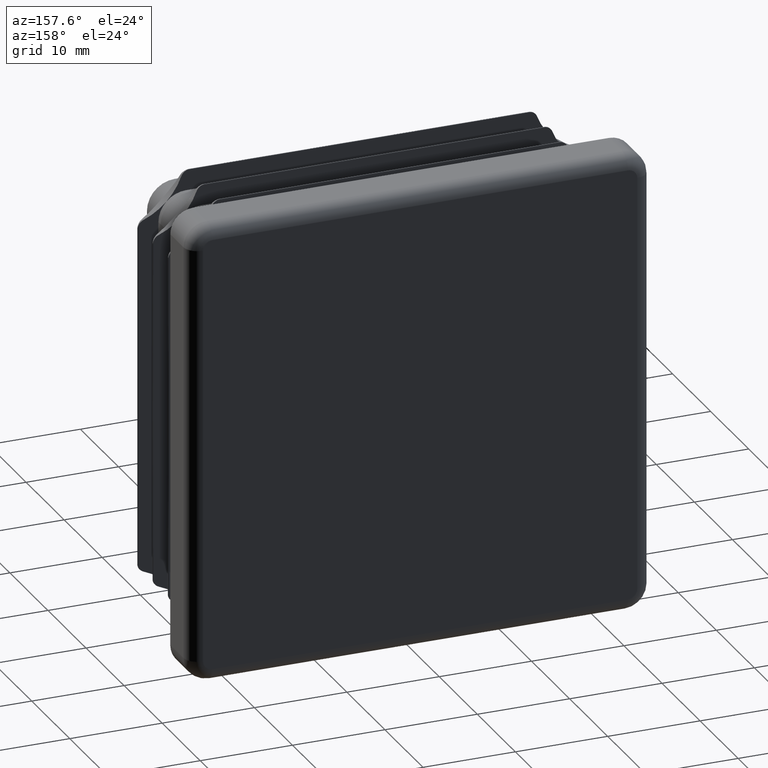
[diagram: clean part render]
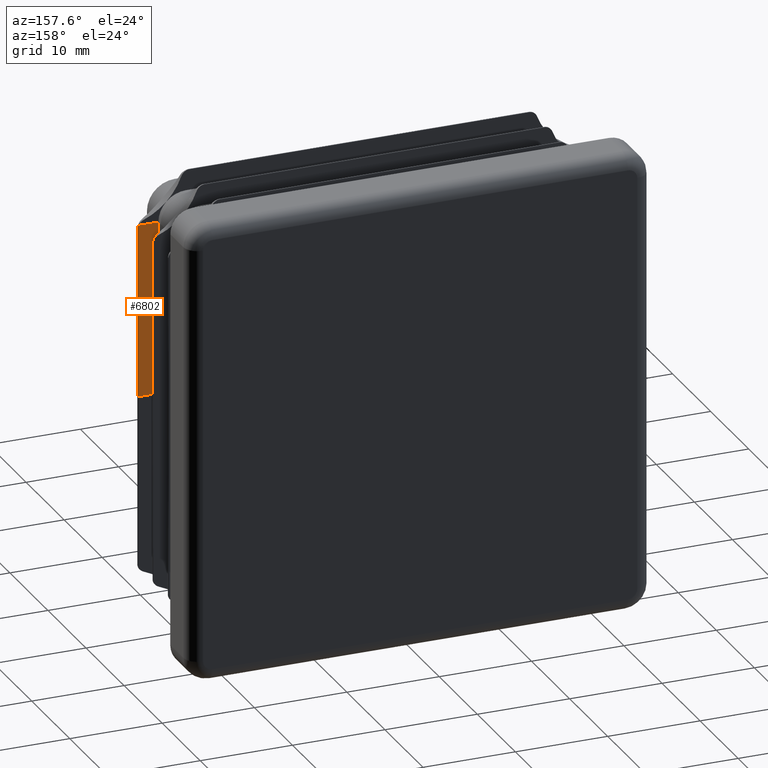
[diagram: same view with one face highlighted and labeled with its STEP entity id]
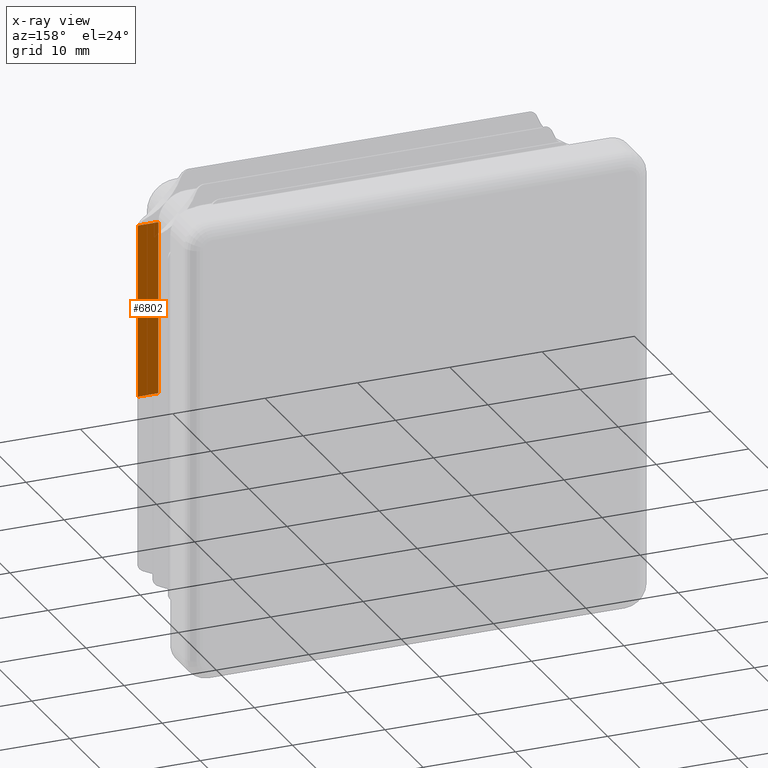
[diagram: x-ray of the same camera — body ghosted, the highlighted face saturated]
A machine part, auxiliary view. The second image highlights one B-rep face of the part: STEP entity #6802.
The next image is the same camera in x-ray: the body ghosted, the highlighted face saturated — about 0% of this face is hidden behind the body in this view.
In plain terms, the highlighted planar face has unit normal (0, -1, -0).
Its self-contained STEP definition (entity closure, byte-faithful):
#297 = DIRECTION ( 'NONE',  ( -1.000000000000000000, 0.000000000000000000, 0.000000000000000000 ) ) ;
#532 = CARTESIAN_POINT ( 'NONE',  ( 23.95000000000008811, -11.00000000000000178, 18.64722551352497248 ) ) ;
#560 = VERTEX_POINT ( 'NONE', #12474 ) ;
#561 = ORIENTED_EDGE ( 'NONE', *, *, #9278, .T. ) ;
#607 = ORIENTED_EDGE ( 'NONE', *, *, #12293, .F. ) ;
#1842 = CARTESIAN_POINT ( 'NONE',  ( 23.95000000000008811, -11.00000000000000178, 18.74999999999999645 ) ) ;
#1956 = VECTOR ( 'NONE', #19129, 1000.000000000000000 ) ;
#1964 = VERTEX_POINT ( 'NONE', #15483 ) ;
#2296 = CARTESIAN_POINT ( 'NONE',  ( 21.75000000000000000, -11.00000000000000178, 18.74999999999999645 ) ) ;
#3265 = DIRECTION ( 'NONE',  ( 0.000000000000000000, 0.000000000000000000, -1.000000000000000000 ) ) ;
#3284 = EDGE_CURVE ( 'NONE', #4786, #18707, #4988, .T. ) ;
#3634 = CARTESIAN_POINT ( 'NONE',  ( 23.00000000000009592, -11.00000000000000178, 18.33497561360503525 ) ) ;
#4589 = AXIS2_PLACEMENT_3D ( 'NONE', #4728, #18368, #6535 ) ;
#4728 = CARTESIAN_POINT ( 'NONE',  ( 21.75000000000008171, -11.00000000000000178, 18.74999999999999645 ) ) ;
#4786 = VERTEX_POINT ( 'NONE', #19013 ) ;
#4988 = LINE ( 'NONE', #8445, #20560 ) ;
#5528 = VECTOR ( 'NONE', #3265, 1000.000000000000000 ) ;
#6429 = LINE ( 'NONE', #17229, #1956 ) ;
#6535 = DIRECTION ( 'NONE',  ( 0.000000000000000000, 0.000000000000000000, -1.000000000000000000 ) ) ;
#6802 = ADVANCED_FACE ( 'NONE', ( #12988 ), #21258, .F. ) ;
#7677 = CIRCLE ( 'NONE', #15643, 0.9999999999999974465 ) ;
#8445 = CARTESIAN_POINT ( 'NONE',  ( 21.75000000000008171, -11.00000000000000178, 18.74999999999999645 ) ) ;
#9278 = EDGE_CURVE ( 'NONE', #560, #1964, #17344, .T. ) ;
#9538 = DIRECTION ( 'NONE',  ( -1.000000000000000000, 0.000000000000000000, 0.000000000000000000 ) ) ;
#10252 = EDGE_CURVE ( 'NONE', #18707, #1964, #6429, .T. ) ;
#10435 = LINE ( 'NONE', #1842, #5528 ) ;
#12293 = EDGE_CURVE ( 'NONE', #18675, #4786, #7677, .T. ) ;
#12474 = CARTESIAN_POINT ( 'NONE',  ( 23.95000000000008811, -11.00000000000000178, 0.000000000000000000 ) ) ;
#12988 = FACE_OUTER_BOUND ( 'NONE', #21299, .T. ) ;
#13684 = VECTOR ( 'NONE', #9538, 1000.000000000000000 ) ;
#13827 = ORIENTED_EDGE ( 'NONE', *, *, #14459, .T. ) ;
#14459 = EDGE_CURVE ( 'NONE', #18675, #560, #10435, .T. ) ;
#15267 = DIRECTION ( 'NONE',  ( -0.000000000000000000, -1.000000000000000000, -0.000000000000000000 ) ) ;
#15483 = CARTESIAN_POINT ( 'NONE',  ( 21.74999999999999645, -11.00000000000000178, 0.000000000000000000 ) ) ;
#15643 = AXIS2_PLACEMENT_3D ( 'NONE', #3634, #15267, #16955 ) ;
#15792 = ORIENTED_EDGE ( 'NONE', *, *, #3284, .F. ) ;
#16955 = DIRECTION ( 'NONE',  ( 0.000000000000000000, 0.000000000000000000, -1.000000000000000000 ) ) ;
#17229 = CARTESIAN_POINT ( 'NONE',  ( 21.75000000000008171, -11.00000000000000178, 18.74999999999999645 ) ) ;
#17344 = LINE ( 'NONE', #18075, #13684 ) ;
#17713 = ORIENTED_EDGE ( 'NONE', *, *, #10252, .F. ) ;
#18075 = CARTESIAN_POINT ( 'NONE',  ( 21.75000000000008171, -11.00000000000000178, 0.000000000000000000 ) ) ;
#18368 = DIRECTION ( 'NONE',  ( 0.000000000000000000, -1.000000000000000000, -0.000000000000000000 ) ) ;
#18675 = VERTEX_POINT ( 'NONE', #532 ) ;
#18707 = VERTEX_POINT ( 'NONE', #2296 ) ;
#19013 = CARTESIAN_POINT ( 'NONE',  ( 23.90981028720149126, -11.00000000000000178, 18.74999999999999645 ) ) ;
#19129 = DIRECTION ( 'NONE',  ( 0.000000000000000000, 0.000000000000000000, -1.000000000000000000 ) ) ;
#20560 = VECTOR ( 'NONE', #297, 1000.000000000000000 ) ;
#21258 = PLANE ( 'NONE',  #4589 ) ;
#21299 = EDGE_LOOP ( 'NONE', ( #607, #13827, #561, #17713, #15792 ) ) ;